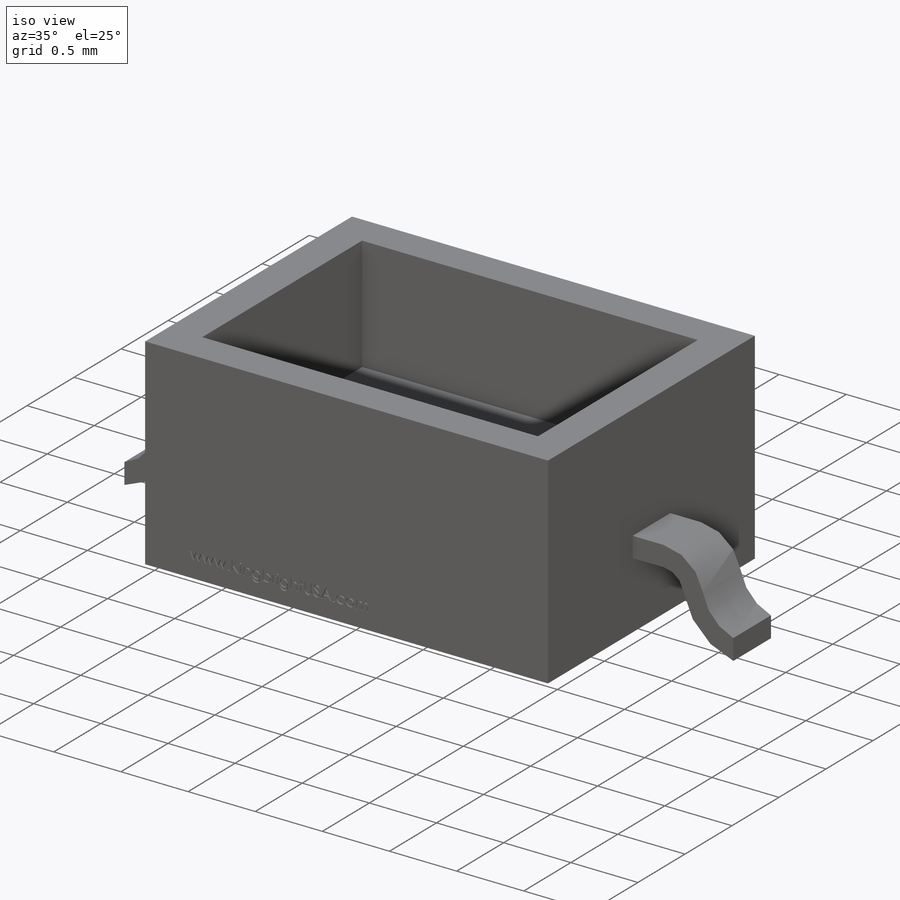
[diagram: iso view]
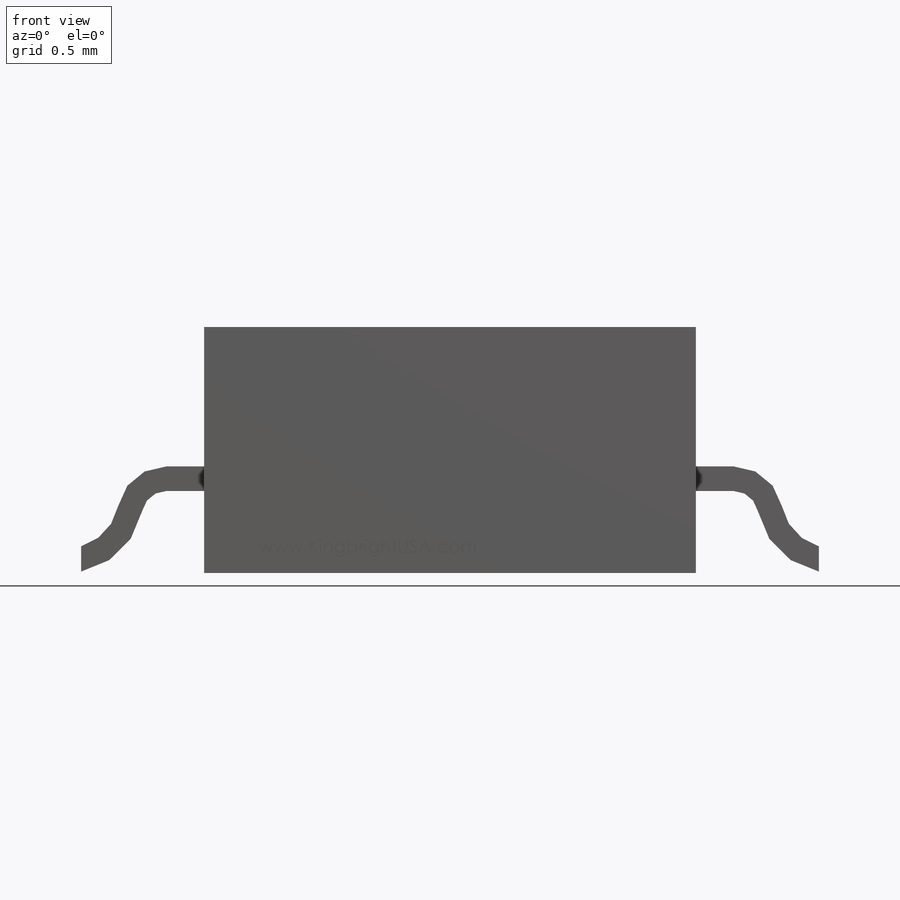
[diagram: front view]
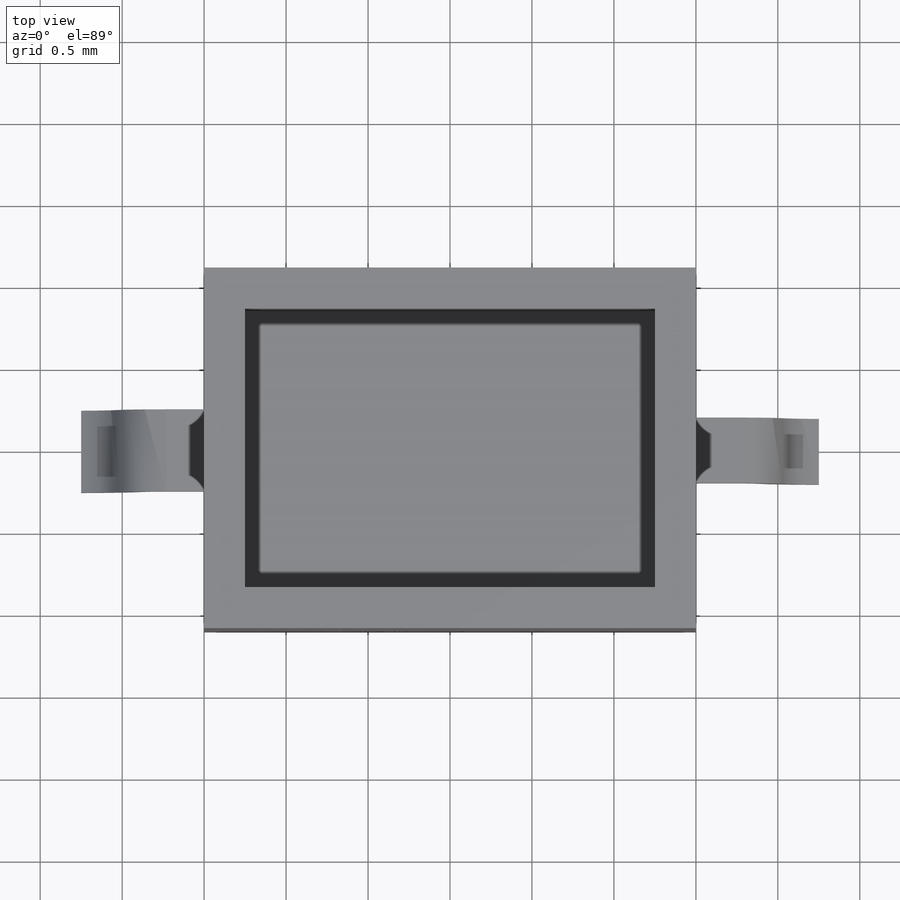
[diagram: top view]
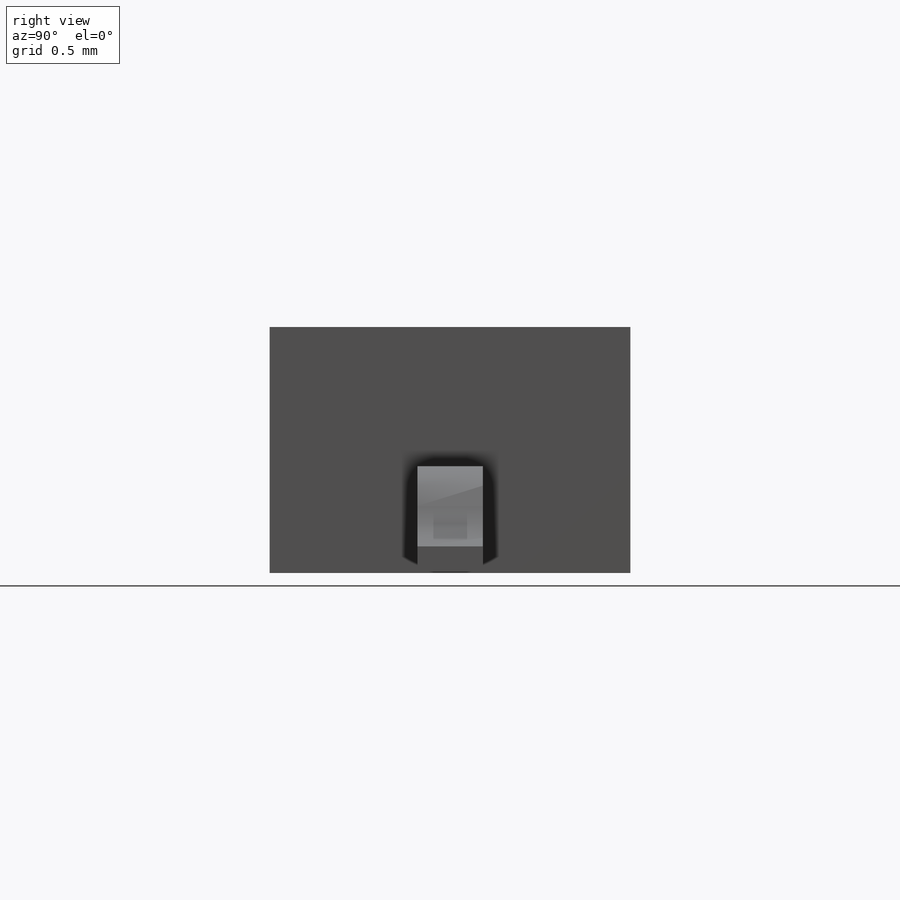
[diagram: right view]
SOLIDWORKS PART (.sldprt)
format: sldprt  version: not decoded by parser v0  size: 641,024 bytes
history: native  units: mm
features: sketch x5, extrude x3, cut_extrude x2, material x1 (+11 scaffold rows collapsed)
feature tree (22):
  scaffold x11  (default folders/planes/origin — collapsed)
  material  "Material <not specified>"
  sketch  "Sketch1"  dims[c1.D5=0.6mm c1.D6=0.32mm c1.D8=0.6mm c1.D9=0.32mm c1.D1=3.0mm c1.D2=1.5mm c1.D3=0.23mm c1.D4=0.1mm c1.D7=0.23mm c1.D10=0.1mm c2.D3=0.65mm c2.D4=0.1mm c2.D5=4.5mm c3.D4=0.15mm]
  extrude  "Extrude1"  Depth=2.2mm
  sketch  "Sketch2"  dims[D1=2.5mm D2=1.7mm D3=0.25mm]
  extrude  "Extrude3"  [1 undecoded]
  sketch  "Sketch1<4>"  dims[D1=0.4mm]
  extrude  "Extrude4"  [1 undecoded]
  sketch  "Sketch1<5>"  dims[D1=0.5mm]
  cut_extrude  "Cut-Extrude1"  [1 undecoded]
  sketch  "Sketch3"  dims[D1=~2.033364mm]
  cut_extrude  "Cut-Extrude2"  Depth=0.01mm
decode coverage: 7 of 10 modeling features carry decoded parameters
note: ~ marks probable driven/reference dimensions
note: 3 parameter values undecoded
summary: no parameter record found for 3 features
note: suppression state not decoded; provenance and decode notes live in map.json
